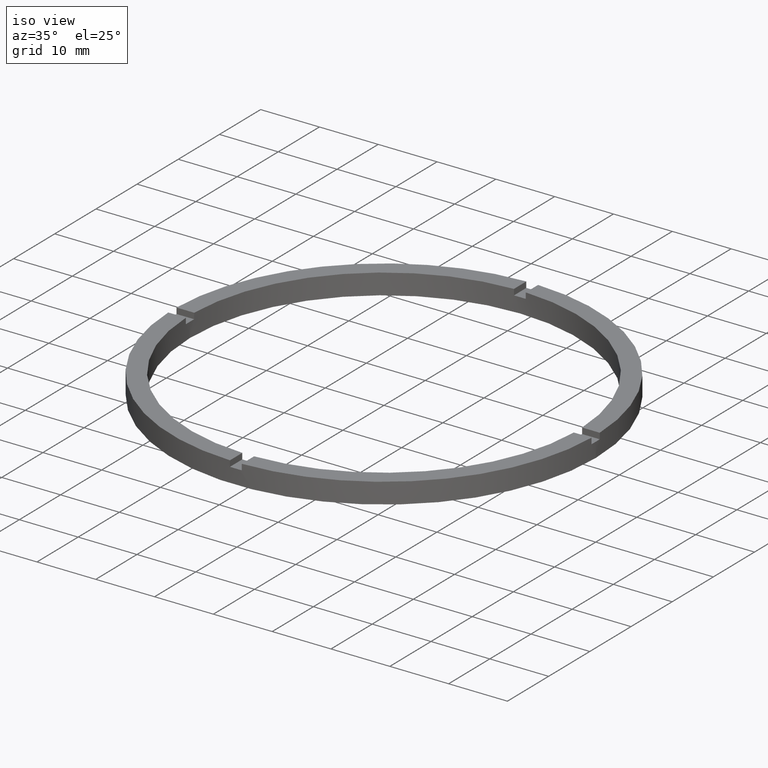
[diagram: clean part render]
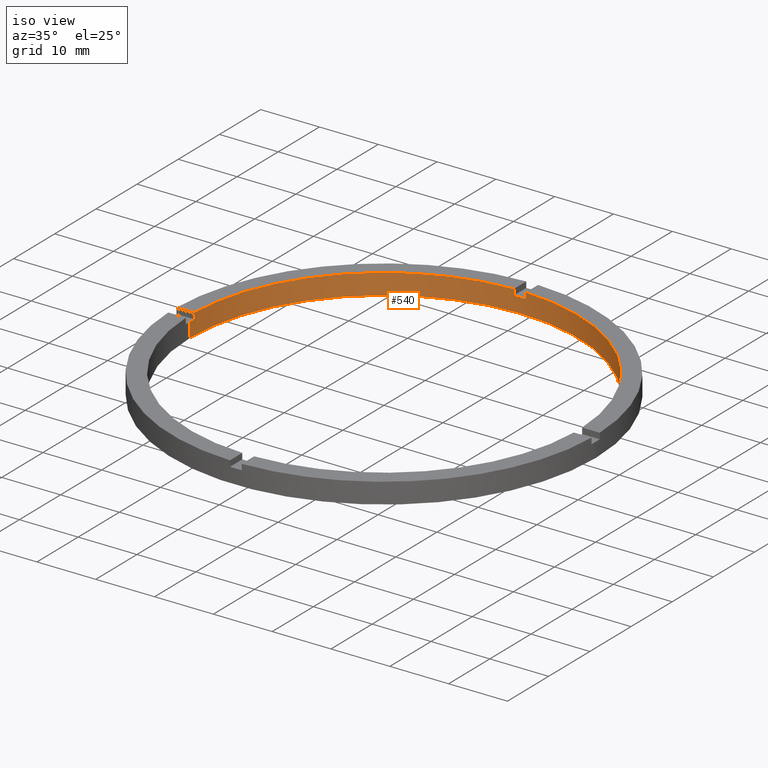
[diagram: same view with one face highlighted and labeled with its STEP entity id]
A machine part, iso view. The second image highlights one B-rep face of the part: STEP entity #540.
In plain terms, the highlighted cylindrical surface (partial cylindrical patch) has radius 33 mm, axis along (-0, -0, -1).
Its self-contained STEP definition (entity closure, byte-faithful):
#7 = EDGE_CURVE ( 'NONE', #181, #356, #21, .T. ) ;
#8 = EDGE_CURVE ( 'NONE', #168, #124, #541, .T. ) ;
#18 = CARTESIAN_POINT ( 'NONE',  ( -32.98484500494129179, 0.9999999999999733546, 3.500000000000000000 ) ) ;
#21 = LINE ( 'NONE', #710, #282 ) ;
#22 = DIRECTION ( 'NONE',  ( 0.000000000000000000, 0.000000000000000000, 1.000000000000000000 ) ) ;
#23 = EDGE_CURVE ( 'NONE', #322, #103, #267, .T. ) ;
#29 = CIRCLE ( 'NONE', #518, 33.00000000000000000 ) ;
#30 = CARTESIAN_POINT ( 'NONE',  ( -32.98484500494129179, 0.9999999999999733546, 3.500000000000000000 ) ) ;
#33 = FACE_OUTER_BOUND ( 'NONE', #359, .T. ) ;
#51 = VECTOR ( 'NONE', #217, 1000.000000000000000 ) ;
#59 = CARTESIAN_POINT ( 'NONE',  ( -1.000000000000025091, 32.98484500494128469, 2.500000000000000000 ) ) ;
#70 = DIRECTION ( 'NONE',  ( 1.000000000000000000, 0.000000000000000000, 0.000000000000000000 ) ) ;
#100 = CIRCLE ( 'NONE', #350, 33.00000000000000000 ) ;
#103 = VERTEX_POINT ( 'NONE', #59 ) ;
#108 = CARTESIAN_POINT ( 'NONE',  ( 33.00000000000000000, 4.041334437186266200E-15, 0.000000000000000000 ) ) ;
#115 = VERTEX_POINT ( 'NONE', #673 ) ;
#117 = EDGE_CURVE ( 'NONE', #168, #459, #277, .T. ) ;
#118 = CARTESIAN_POINT ( 'NONE',  ( 32.98484500494129179, 0.9999999999998419042, 3.500000000000000000 ) ) ;
#123 = DIRECTION ( 'NONE',  ( 0.000000000000000000, 0.000000000000000000, 1.000000000000000000 ) ) ;
#124 = VERTEX_POINT ( 'NONE', #30 ) ;
#125 = CARTESIAN_POINT ( 'NONE',  ( 0.9999999999999749090, 32.98484500494129179, 3.500000000000000000 ) ) ;
#127 = LINE ( 'NONE', #162, #384 ) ;
#133 = VERTEX_POINT ( 'NONE', #125 ) ;
#135 = ORIENTED_EDGE ( 'NONE', *, *, #8, .F. ) ;
#139 = ORIENTED_EDGE ( 'NONE', *, *, #7, .F. ) ;
#140 = CARTESIAN_POINT ( 'NONE',  ( 0.000000000000000000, 0.000000000000000000, 3.500000000000000000 ) ) ;
#143 = VECTOR ( 'NONE', #123, 1000.000000000000000 ) ;
#145 = AXIS2_PLACEMENT_3D ( 'NONE', #140, #244, #286 ) ;
#162 = CARTESIAN_POINT ( 'NONE',  ( -33.00000000000000000, 0.000000000000000000, 3.500000000000000000 ) ) ;
#167 = DIRECTION ( 'NONE',  ( 1.000000000000000000, 0.000000000000000000, 0.000000000000000000 ) ) ;
#168 = VERTEX_POINT ( 'NONE', #431 ) ;
#171 = ORIENTED_EDGE ( 'NONE', *, *, #680, .T. ) ;
#172 = EDGE_CURVE ( 'NONE', #711, #115, #29, .T. ) ;
#181 = VERTEX_POINT ( 'NONE', #118 ) ;
#190 = ORIENTED_EDGE ( 'NONE', *, *, #433, .T. ) ;
#193 = ORIENTED_EDGE ( 'NONE', *, *, #406, .T. ) ;
#200 = CARTESIAN_POINT ( 'NONE',  ( 0.000000000000000000, 0.000000000000000000, 2.500000000000000000 ) ) ;
#205 = ORIENTED_EDGE ( 'NONE', *, *, #23, .F. ) ;
#217 = DIRECTION ( 'NONE',  ( -0.000000000000000000, -0.000000000000000000, -1.000000000000000000 ) ) ;
#218 = CARTESIAN_POINT ( 'NONE',  ( 0.000000000000000000, 0.000000000000000000, 2.500000000000000000 ) ) ;
#219 = DIRECTION ( 'NONE',  ( -0.000000000000000000, -0.000000000000000000, -1.000000000000000000 ) ) ;
#240 = EDGE_CURVE ( 'NONE', #624, #356, #538, .T. ) ;
#242 = DIRECTION ( 'NONE',  ( 0.000000000000000000, 0.000000000000000000, 1.000000000000000000 ) ) ;
#244 = DIRECTION ( 'NONE',  ( 0.000000000000000000, 0.000000000000000000, 1.000000000000000000 ) ) ;
#253 = DIRECTION ( 'NONE',  ( -0.000000000000000000, -0.000000000000000000, -1.000000000000000000 ) ) ;
#263 = DIRECTION ( 'NONE',  ( -0.000000000000000000, -0.000000000000000000, -1.000000000000000000 ) ) ;
#267 = LINE ( 'NONE', #703, #558 ) ;
#277 = CIRCLE ( 'NONE', #401, 33.00000000000000000 ) ;
#282 = VECTOR ( 'NONE', #253, 1000.000000000000000 ) ;
#286 = DIRECTION ( 'NONE',  ( 1.000000000000000000, 0.000000000000000000, 0.000000000000000000 ) ) ;
#303 = CARTESIAN_POINT ( 'NONE',  ( 0.000000000000000000, 0.000000000000000000, 3.500000000000000000 ) ) ;
#308 = CYLINDRICAL_SURFACE ( 'NONE', #587, 33.00000000000000000 ) ;
#315 = CARTESIAN_POINT ( 'NONE',  ( 0.9999999999999749090, 32.98484500494129179, 2.500000000000000000 ) ) ;
#322 = VERTEX_POINT ( 'NONE', #371 ) ;
#326 = CARTESIAN_POINT ( 'NONE',  ( 33.00000000000000000, 4.041334437186266200E-15, 2.500000000000000000 ) ) ;
#350 = AXIS2_PLACEMENT_3D ( 'NONE', #416, #615, #676 ) ;
#356 = VERTEX_POINT ( 'NONE', #741 ) ;
#359 = EDGE_LOOP ( 'NONE', ( #443, #662, #139, #193, #470, #171, #205, #190, #135, #645, #437, #474 ) ) ;
#371 = CARTESIAN_POINT ( 'NONE',  ( -1.000000000000025091, 32.98484500494128469, 3.500000000000000000 ) ) ;
#384 = VECTOR ( 'NONE', #219, 1000.000000000000000 ) ;
#395 = DIRECTION ( 'NONE',  ( -0.000000000000000000, -0.000000000000000000, -1.000000000000000000 ) ) ;
#401 = AXIS2_PLACEMENT_3D ( 'NONE', #614, #242, #167 ) ;
#406 = EDGE_CURVE ( 'NONE', #181, #133, #650, .T. ) ;
#415 = DIRECTION ( 'NONE',  ( 0.000000000000000000, -0.000000000000000000, 1.000000000000000000 ) ) ;
#416 = CARTESIAN_POINT ( 'NONE',  ( 0.000000000000000000, 0.000000000000000000, 3.500000000000000000 ) ) ;
#418 = EDGE_CURVE ( 'NONE', #459, #115, #127, .T. ) ;
#420 = DIRECTION ( 'NONE',  ( 1.000000000000000000, 0.000000000000000000, 0.000000000000000000 ) ) ;
#431 = CARTESIAN_POINT ( 'NONE',  ( -32.98484500494129179, 0.9999999999999733546, 2.500000000000000000 ) ) ;
#433 = EDGE_CURVE ( 'NONE', #322, #124, #100, .T. ) ;
#437 = ORIENTED_EDGE ( 'NONE', *, *, #418, .T. ) ;
#443 = ORIENTED_EDGE ( 'NONE', *, *, #559, .F. ) ;
#447 = DIRECTION ( 'NONE',  ( -1.000000000000000000, 0.000000000000000000, 0.000000000000000000 ) ) ;
#456 = CARTESIAN_POINT ( 'NONE',  ( 33.00000000000000000, 4.041334437186266200E-15, 3.500000000000000000 ) ) ;
#459 = VERTEX_POINT ( 'NONE', #770 ) ;
#470 = ORIENTED_EDGE ( 'NONE', *, *, #720, .F. ) ;
#474 = ORIENTED_EDGE ( 'NONE', *, *, #172, .F. ) ;
#489 = CARTESIAN_POINT ( 'NONE',  ( 0.000000000000000000, 0.000000000000000000, 0.000000000000000000 ) ) ;
#494 = AXIS2_PLACEMENT_3D ( 'NONE', #200, #622, #70 ) ;
#518 = AXIS2_PLACEMENT_3D ( 'NONE', #489, #738, #529 ) ;
#529 = DIRECTION ( 'NONE',  ( 1.000000000000000000, 0.000000000000000000, 0.000000000000000000 ) ) ;
#538 = CIRCLE ( 'NONE', #494, 33.00000000000000000 ) ;
#540 = ADVANCED_FACE ( 'NONE', ( #33 ), #308, .F. ) ;
#541 = LINE ( 'NONE', #18, #565 ) ;
#558 = VECTOR ( 'NONE', #263, 1000.000000000000000 ) ;
#559 = EDGE_CURVE ( 'NONE', #624, #711, #571, .T. ) ;
#565 = VECTOR ( 'NONE', #22, 1000.000000000000000 ) ;
#571 = LINE ( 'NONE', #456, #51 ) ;
#587 = AXIS2_PLACEMENT_3D ( 'NONE', #303, #395, #447 ) ;
#604 = AXIS2_PLACEMENT_3D ( 'NONE', #218, #415, #420 ) ;
#614 = CARTESIAN_POINT ( 'NONE',  ( 0.000000000000000000, 0.000000000000000000, 2.500000000000000000 ) ) ;
#615 = DIRECTION ( 'NONE',  ( 0.000000000000000000, 0.000000000000000000, 1.000000000000000000 ) ) ;
#622 = DIRECTION ( 'NONE',  ( 0.000000000000000000, 0.000000000000000000, 1.000000000000000000 ) ) ;
#624 = VERTEX_POINT ( 'NONE', #326 ) ;
#645 = ORIENTED_EDGE ( 'NONE', *, *, #117, .T. ) ;
#647 = VERTEX_POINT ( 'NONE', #315 ) ;
#650 = CIRCLE ( 'NONE', #145, 33.00000000000000000 ) ;
#661 = CARTESIAN_POINT ( 'NONE',  ( 0.9999999999999749090, 32.98484500494129179, 3.500000000000000000 ) ) ;
#662 = ORIENTED_EDGE ( 'NONE', *, *, #240, .T. ) ;
#669 = LINE ( 'NONE', #661, #143 ) ;
#673 = CARTESIAN_POINT ( 'NONE',  ( -33.00000000000000000, 0.000000000000000000, 0.000000000000000000 ) ) ;
#676 = DIRECTION ( 'NONE',  ( 1.000000000000000000, 0.000000000000000000, 0.000000000000000000 ) ) ;
#680 = EDGE_CURVE ( 'NONE', #647, #103, #753, .T. ) ;
#703 = CARTESIAN_POINT ( 'NONE',  ( -1.000000000000025091, 32.98484500494128469, 3.500000000000000000 ) ) ;
#710 = CARTESIAN_POINT ( 'NONE',  ( 32.98484500494129179, 0.9999999999998419042, 3.500000000000000000 ) ) ;
#711 = VERTEX_POINT ( 'NONE', #108 ) ;
#720 = EDGE_CURVE ( 'NONE', #647, #133, #669, .T. ) ;
#738 = DIRECTION ( 'NONE',  ( 0.000000000000000000, 0.000000000000000000, 1.000000000000000000 ) ) ;
#741 = CARTESIAN_POINT ( 'NONE',  ( 32.98484500494129179, 0.9999999999998419042, 2.500000000000000000 ) ) ;
#753 = CIRCLE ( 'NONE', #604, 33.00000000000000000 ) ;
#770 = CARTESIAN_POINT ( 'NONE',  ( -33.00000000000000000, 0.000000000000000000, 2.500000000000000000 ) ) ;